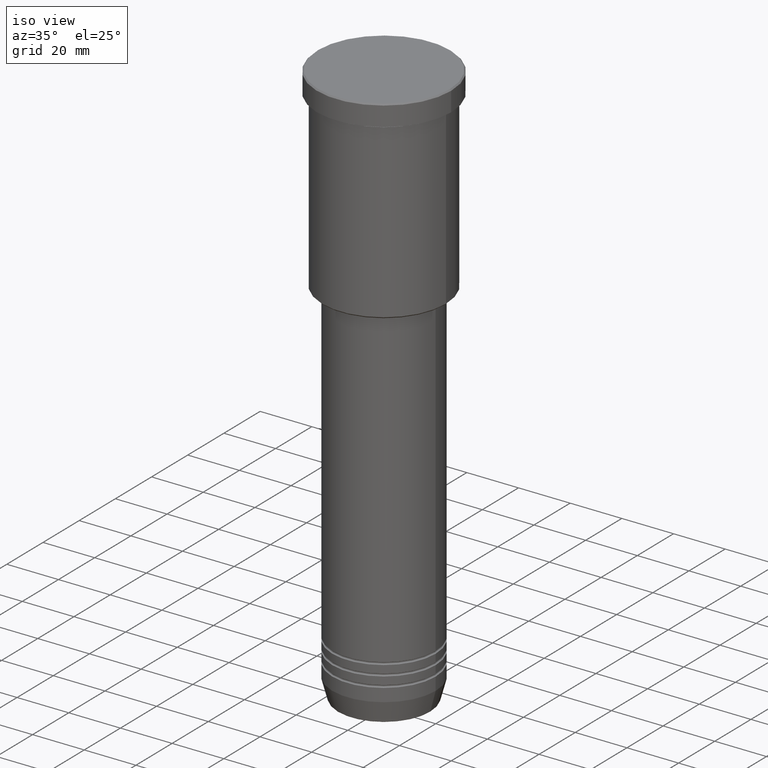
[diagram: clean part render]
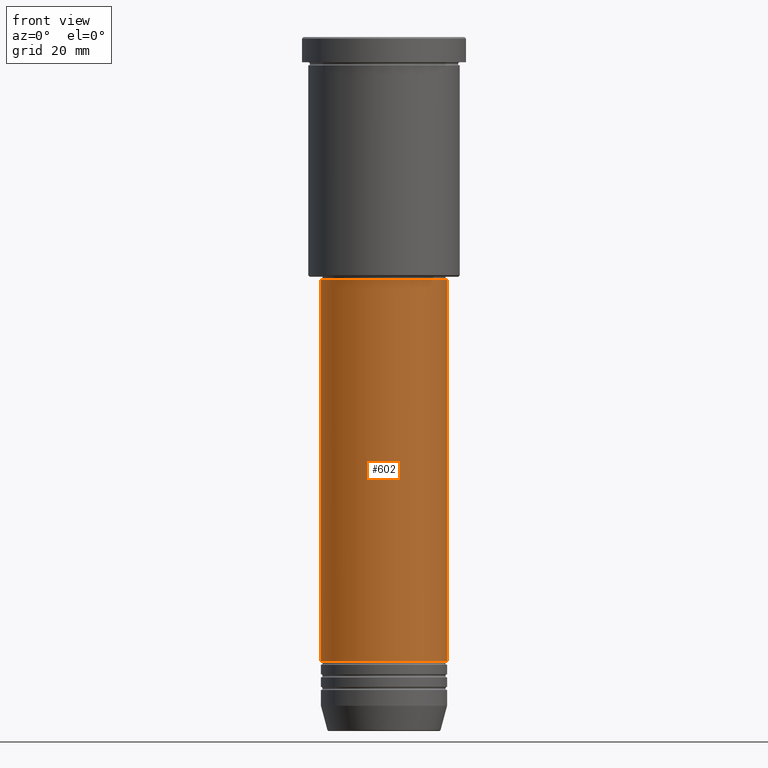
[diagram: tour spotlight — one face highlighted and labeled with its STEP entity id]
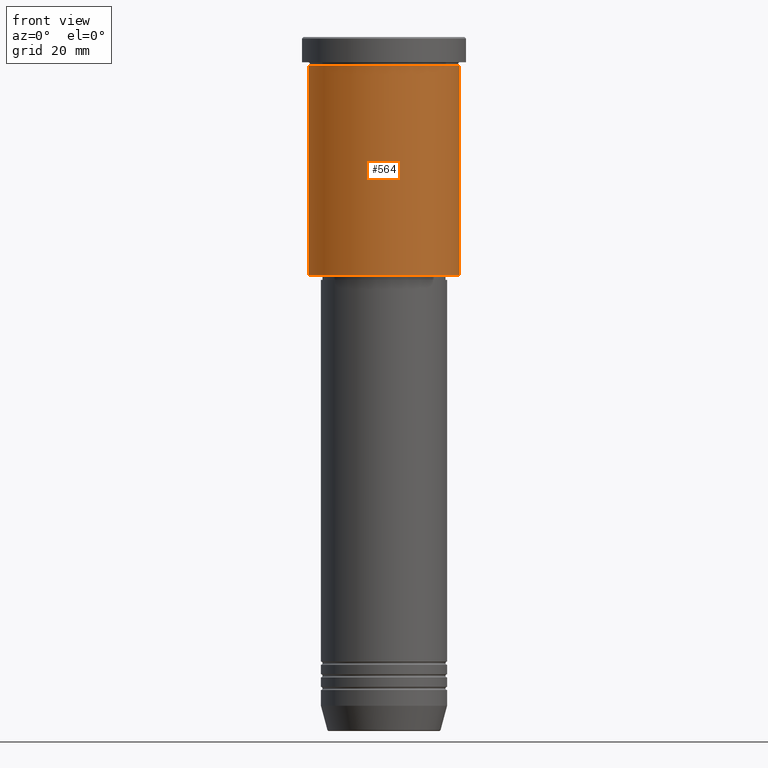
[diagram: tour spotlight — one face highlighted and labeled with its STEP entity id]
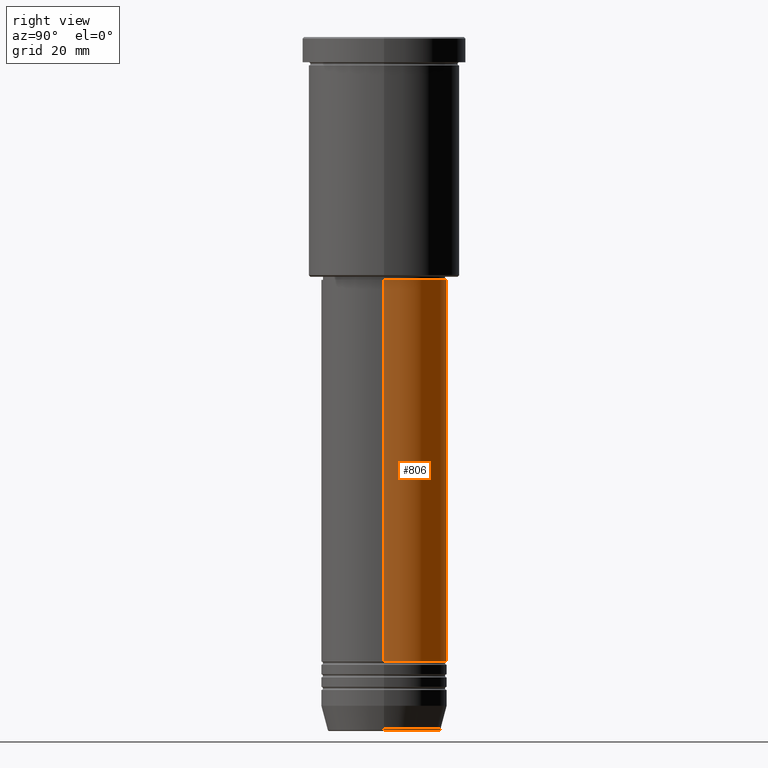
[diagram: tour spotlight — one face highlighted and labeled with its STEP entity id]
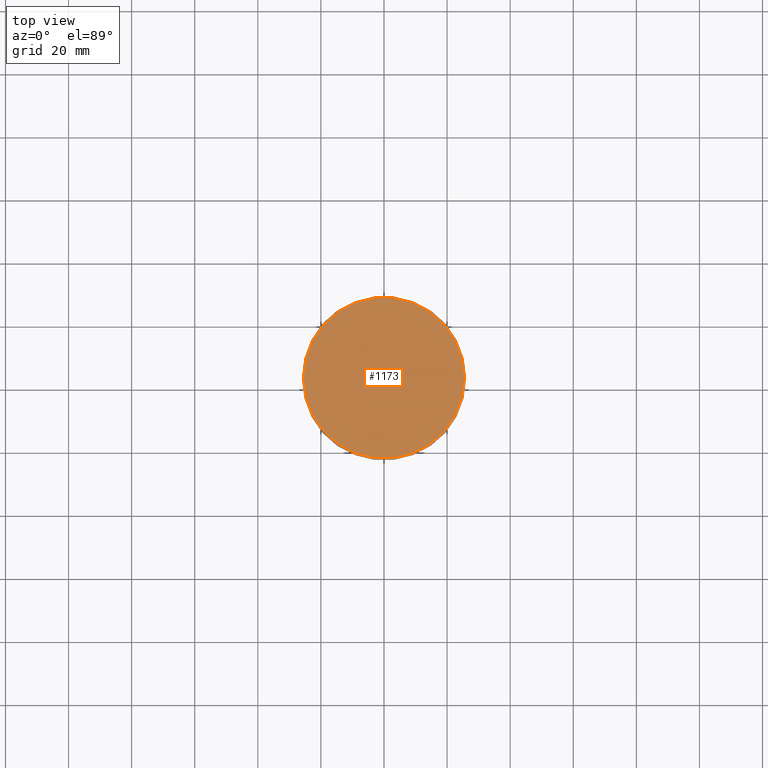
[diagram: tour spotlight — one face highlighted and labeled with its STEP entity id]
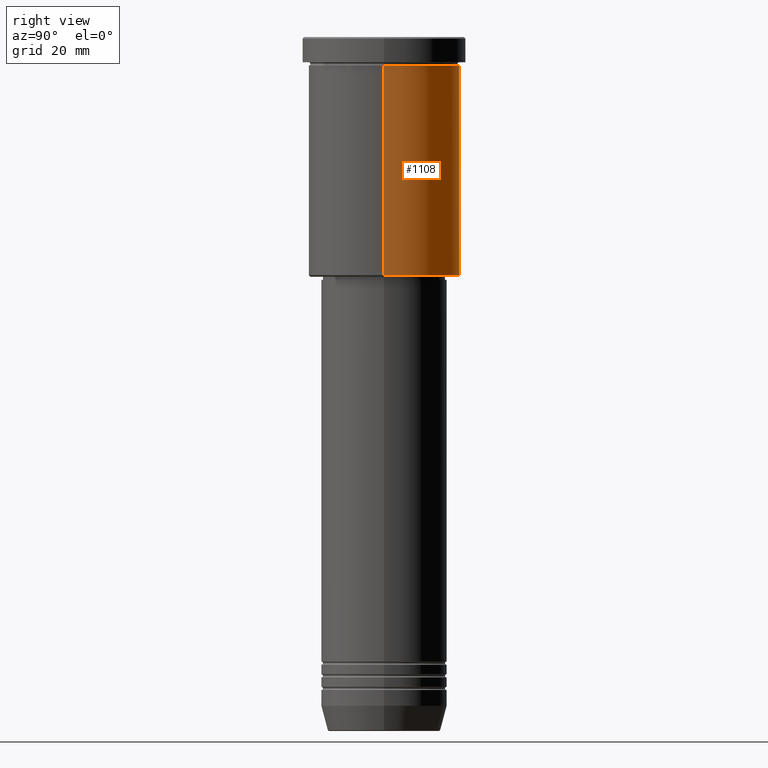
[diagram: tour spotlight — one face highlighted and labeled with its STEP entity id]
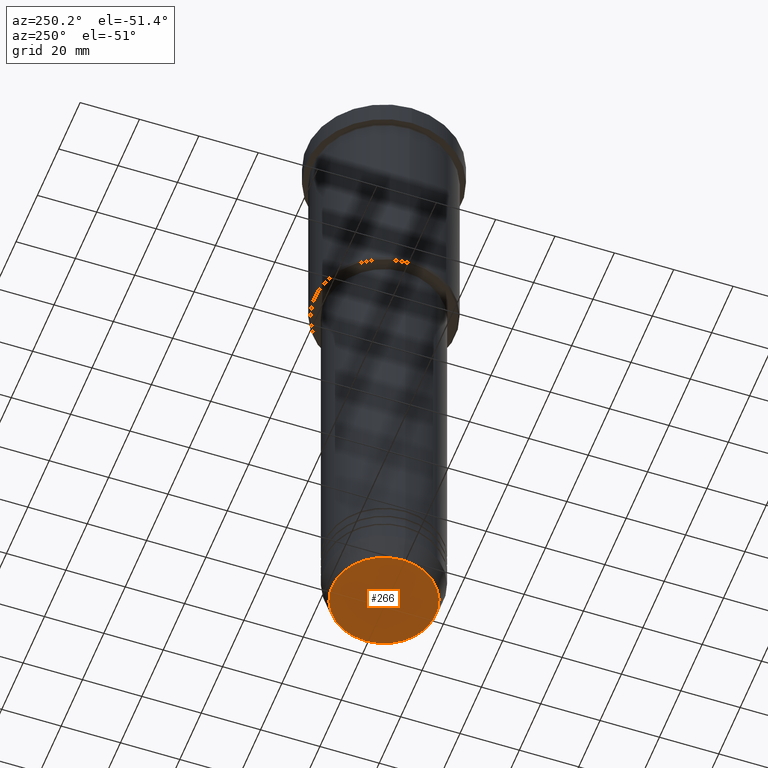
[diagram: tour spotlight — one face highlighted and labeled with its STEP entity id]
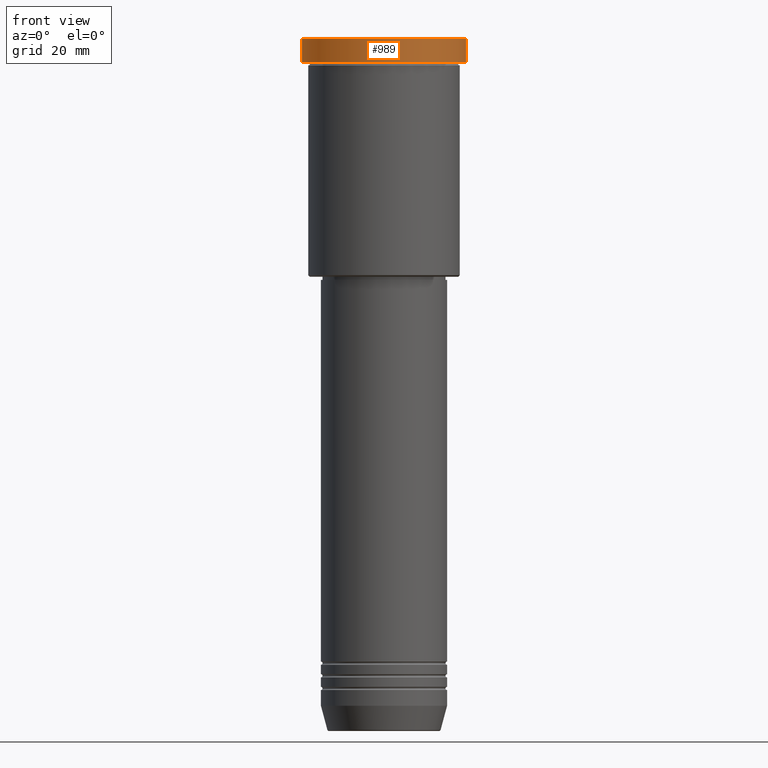
[diagram: tour spotlight — one face highlighted and labeled with its STEP entity id]
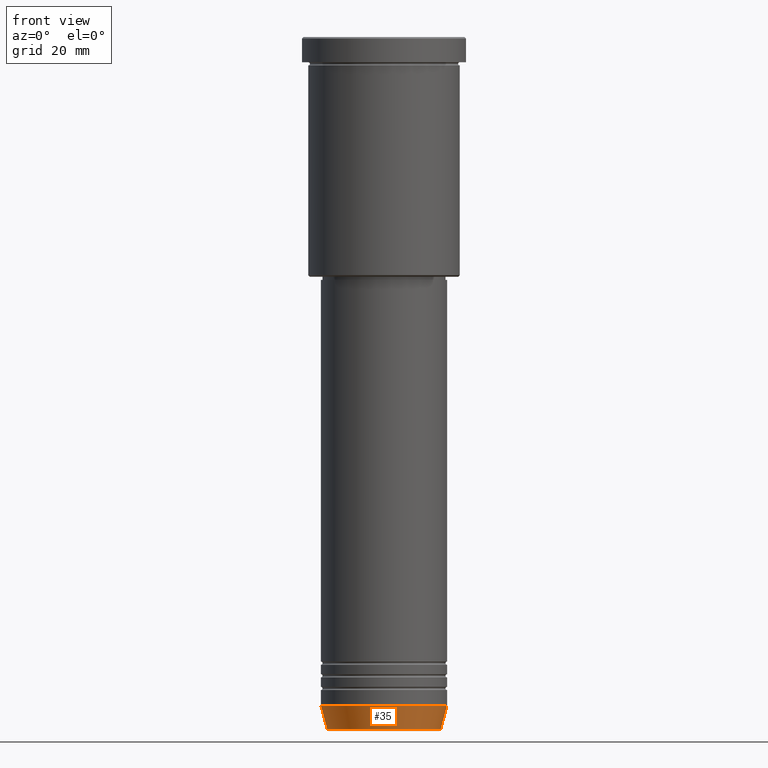
[diagram: tour spotlight — one face highlighted and labeled with its STEP entity id]
A machine part: a face-by-face anatomy tour. The part has 43 B-rep faces; the first image is the clean iso view, then the 8 largest visible faces are spotlighted one at a time (largest first), each with its STEP entity span.

Face 1 — front view, entity #602. In plain terms, the highlighted cylindrical surface (partial cylindrical patch) has radius 20 mm, axis along (-0, -0, 1).
Definition (entity closure, byte-faithful):
#1 = LINE ( 'NONE', #909, #1131 ) ;
#75 = DIRECTION ( 'NONE',  ( 1.000000000000000000, 0.000000000000000000, 0.000000000000000000 ) ) ;
#96 = AXIS2_PLACEMENT_3D ( 'NONE', #534, #903, #75 ) ;
#158 = DIRECTION ( 'NONE',  ( -0.000000000000000000, -0.000000000000000000, 1.000000000000000000 ) ) ;
#201 = CARTESIAN_POINT ( 'NONE',  ( 20.00000000000000355, 0.000000000000000000, -197.9999999999999716 ) ) ;
#252 = AXIS2_PLACEMENT_3D ( 'NONE', #421, #787, #699 ) ;
#259 = ORIENTED_EDGE ( 'NONE', *, *, #861, .F. ) ;
#263 = DIRECTION ( 'NONE',  ( 1.000000000000000000, 0.000000000000000000, 0.000000000000000000 ) ) ;
#361 = VERTEX_POINT ( 'NONE', #968 ) ;
#421 = CARTESIAN_POINT ( 'NONE',  ( 0.000000000000000000, 0.000000000000000000, -77.00000000000004263 ) ) ;
#440 = CARTESIAN_POINT ( 'NONE',  ( -20.00000000000000355, 2.449293598294706907E-15, -197.9999999999999716 ) ) ;
#445 = LINE ( 'NONE', #987, #755 ) ;
#466 = ORIENTED_EDGE ( 'NONE', *, *, #869, .T. ) ;
#525 = EDGE_LOOP ( 'NONE', ( #641, #466, #821, #259 ) ) ;
#534 = CARTESIAN_POINT ( 'NONE',  ( 0.000000000000000000, 0.000000000000000000, 0.000000000000000000 ) ) ;
#542 = FACE_OUTER_BOUND ( 'NONE', #525, .T. ) ;
#602 = ADVANCED_FACE ( 'NONE', ( #542 ), #964, .T. ) ;
#615 = CARTESIAN_POINT ( 'NONE',  ( 0.000000000000000000, 0.000000000000000000, -197.9999999999999716 ) ) ;
#627 = CIRCLE ( 'NONE', #252, 20.00000000000000355 ) ;
#641 = ORIENTED_EDGE ( 'NONE', *, *, #1146, .F. ) ;
#699 = DIRECTION ( 'NONE',  ( 1.000000000000000000, 0.000000000000000000, 0.000000000000000000 ) ) ;
#736 = DIRECTION ( 'NONE',  ( -0.000000000000000000, -0.000000000000000000, 1.000000000000000000 ) ) ;
#755 = VECTOR ( 'NONE', #976, 1000.000000000000000 ) ;
#787 = DIRECTION ( 'NONE',  ( -0.000000000000000000, -0.000000000000000000, 1.000000000000000000 ) ) ;
#820 = CARTESIAN_POINT ( 'NONE',  ( 20.00000000000000355, 0.000000000000000000, -77.00000000000004263 ) ) ;
#821 = ORIENTED_EDGE ( 'NONE', *, *, #1025, .T. ) ;
#861 = EDGE_CURVE ( 'NONE', #361, #941, #627, .T. ) ;
#869 = EDGE_CURVE ( 'NONE', #1083, #937, #877, .T. ) ;
#877 = CIRCLE ( 'NONE', #975, 20.00000000000000355 ) ;
#903 = DIRECTION ( 'NONE',  ( -0.000000000000000000, -0.000000000000000000, 1.000000000000000000 ) ) ;
#909 = CARTESIAN_POINT ( 'NONE',  ( 20.00000000000000355, 0.000000000000000000, 0.000000000000000000 ) ) ;
#937 = VERTEX_POINT ( 'NONE', #201 ) ;
#941 = VERTEX_POINT ( 'NONE', #820 ) ;
#964 = CYLINDRICAL_SURFACE ( 'NONE', #96, 20.00000000000000355 ) ;
#968 = CARTESIAN_POINT ( 'NONE',  ( -20.00000000000000355, 2.449293598294706907E-15, -77.00000000000004263 ) ) ;
#975 = AXIS2_PLACEMENT_3D ( 'NONE', #615, #158, #263 ) ;
#976 = DIRECTION ( 'NONE',  ( -0.000000000000000000, -0.000000000000000000, 1.000000000000000000 ) ) ;
#987 = CARTESIAN_POINT ( 'NONE',  ( -20.00000000000000355, 2.449293598294706907E-15, 0.000000000000000000 ) ) ;
#1025 = EDGE_CURVE ( 'NONE', #937, #941, #1, .T. ) ;
#1083 = VERTEX_POINT ( 'NONE', #440 ) ;
#1131 = VECTOR ( 'NONE', #736, 1000.000000000000000 ) ;
#1146 = EDGE_CURVE ( 'NONE', #1083, #361, #445, .T. ) ;

Face 2 — front view, entity #564. In plain terms, the highlighted cylindrical surface (partial cylindrical patch) has radius 24 mm, axis along (-0, -0, 1).
Definition (entity closure, byte-faithful):
#76 = CIRCLE ( 'NONE', #313, 24.00000000000000000 ) ;
#156 = AXIS2_PLACEMENT_3D ( 'NONE', #724, #1009, #536 ) ;
#171 = DIRECTION ( 'NONE',  ( -0.000000000000000000, -0.000000000000000000, 1.000000000000000000 ) ) ;
#209 = ORIENTED_EDGE ( 'NONE', *, *, #507, .T. ) ;
#275 = AXIS2_PLACEMENT_3D ( 'NONE', #813, #171, #679 ) ;
#294 = EDGE_CURVE ( 'NONE', #504, #650, #76, .T. ) ;
#313 = AXIS2_PLACEMENT_3D ( 'NONE', #1147, #332, #698 ) ;
#332 = DIRECTION ( 'NONE',  ( -0.000000000000000000, -0.000000000000000000, 1.000000000000000000 ) ) ;
#450 = DIRECTION ( 'NONE',  ( -0.000000000000000000, -0.000000000000000000, 1.000000000000000000 ) ) ;
#495 = CARTESIAN_POINT ( 'NONE',  ( 24.00000000000000000, 0.000000000000000000, 0.000000000000000000 ) ) ;
#501 = EDGE_CURVE ( 'NONE', #1148, #504, #996, .T. ) ;
#504 = VERTEX_POINT ( 'NONE', #815 ) ;
#507 = EDGE_CURVE ( 'NONE', #1148, #1089, #935, .T. ) ;
#513 = CARTESIAN_POINT ( 'NONE',  ( 24.00000000000000000, 0.000000000000000000, -75.49999999999997158 ) ) ;
#536 = DIRECTION ( 'NONE',  ( -1.000000000000000000, 0.000000000000000000, 0.000000000000000000 ) ) ;
#539 = EDGE_CURVE ( 'NONE', #1089, #650, #1026, .T. ) ;
#564 = ADVANCED_FACE ( 'NONE', ( #747 ), #800, .T. ) ;
#623 = ORIENTED_EDGE ( 'NONE', *, *, #294, .F. ) ;
#628 = CARTESIAN_POINT ( 'NONE',  ( -24.00000000000000000, 2.939152317953647894E-15, -75.49999999999997158 ) ) ;
#636 = CARTESIAN_POINT ( 'NONE',  ( -24.00000000000000000, 2.939152317953647894E-15, 0.000000000000000000 ) ) ;
#650 = VERTEX_POINT ( 'NONE', #745 ) ;
#679 = DIRECTION ( 'NONE',  ( 1.000000000000000000, 0.000000000000000000, 0.000000000000000000 ) ) ;
#698 = DIRECTION ( 'NONE',  ( 1.000000000000000000, 0.000000000000000000, 0.000000000000000000 ) ) ;
#711 = VECTOR ( 'NONE', #450, 1000.000000000000000 ) ;
#724 = CARTESIAN_POINT ( 'NONE',  ( 0.000000000000000000, 0.000000000000000000, -75.49999999999997158 ) ) ;
#745 = CARTESIAN_POINT ( 'NONE',  ( 24.00000000000000000, 0.000000000000000000, -8.999999999999994671 ) ) ;
#747 = FACE_OUTER_BOUND ( 'NONE', #1017, .T. ) ;
#800 = CYLINDRICAL_SURFACE ( 'NONE', #275, 24.00000000000000000 ) ;
#813 = CARTESIAN_POINT ( 'NONE',  ( 0.000000000000000000, 0.000000000000000000, 0.000000000000000000 ) ) ;
#815 = CARTESIAN_POINT ( 'NONE',  ( -24.00000000000000000, 2.939152317953647894E-15, -8.999999999999994671 ) ) ;
#860 = DIRECTION ( 'NONE',  ( -0.000000000000000000, -0.000000000000000000, 1.000000000000000000 ) ) ;
#935 = CIRCLE ( 'NONE', #156, 24.00000000000000000 ) ;
#996 = LINE ( 'NONE', #636, #711 ) ;
#1009 = DIRECTION ( 'NONE',  ( -0.000000000000000000, -0.000000000000000000, 1.000000000000000000 ) ) ;
#1017 = EDGE_LOOP ( 'NONE', ( #1103, #209, #1043, #623 ) ) ;
#1026 = LINE ( 'NONE', #495, #1145 ) ;
#1043 = ORIENTED_EDGE ( 'NONE', *, *, #539, .T. ) ;
#1089 = VERTEX_POINT ( 'NONE', #513 ) ;
#1103 = ORIENTED_EDGE ( 'NONE', *, *, #501, .F. ) ;
#1145 = VECTOR ( 'NONE', #860, 1000.000000000000000 ) ;
#1147 = CARTESIAN_POINT ( 'NONE',  ( 0.000000000000000000, 0.000000000000000000, -8.999999999999994671 ) ) ;
#1148 = VERTEX_POINT ( 'NONE', #628 ) ;

Face 3 — right view, entity #806. In plain terms, the highlighted cylindrical surface (partial cylindrical patch) has radius 20 mm, axis along (-0, -0, 1).
Definition (entity closure, byte-faithful):
#1 = LINE ( 'NONE', #909, #1131 ) ;
#37 = DIRECTION ( 'NONE',  ( -0.000000000000000000, -0.000000000000000000, 1.000000000000000000 ) ) ;
#69 = EDGE_LOOP ( 'NONE', ( #601, #348, #330, #607 ) ) ;
#85 = CIRCLE ( 'NONE', #142, 20.00000000000000355 ) ;
#115 = DIRECTION ( 'NONE',  ( 1.000000000000000000, 0.000000000000000000, 0.000000000000000000 ) ) ;
#142 = AXIS2_PLACEMENT_3D ( 'NONE', #883, #1165, #1158 ) ;
#201 = CARTESIAN_POINT ( 'NONE',  ( 20.00000000000000355, 0.000000000000000000, -197.9999999999999716 ) ) ;
#307 = DIRECTION ( 'NONE',  ( -0.000000000000000000, -0.000000000000000000, 1.000000000000000000 ) ) ;
#330 = ORIENTED_EDGE ( 'NONE', *, *, #428, .F. ) ;
#348 = ORIENTED_EDGE ( 'NONE', *, *, #1146, .T. ) ;
#361 = VERTEX_POINT ( 'NONE', #968 ) ;
#387 = CYLINDRICAL_SURFACE ( 'NONE', #994, 20.00000000000000355 ) ;
#428 = EDGE_CURVE ( 'NONE', #941, #361, #685, .T. ) ;
#440 = CARTESIAN_POINT ( 'NONE',  ( -20.00000000000000355, 2.449293598294706907E-15, -197.9999999999999716 ) ) ;
#445 = LINE ( 'NONE', #987, #755 ) ;
#592 = FACE_OUTER_BOUND ( 'NONE', #69, .T. ) ;
#601 = ORIENTED_EDGE ( 'NONE', *, *, #1120, .T. ) ;
#607 = ORIENTED_EDGE ( 'NONE', *, *, #1025, .F. ) ;
#685 = CIRCLE ( 'NONE', #849, 20.00000000000000355 ) ;
#736 = DIRECTION ( 'NONE',  ( -0.000000000000000000, -0.000000000000000000, 1.000000000000000000 ) ) ;
#754 = CARTESIAN_POINT ( 'NONE',  ( 0.000000000000000000, 0.000000000000000000, -77.00000000000004263 ) ) ;
#755 = VECTOR ( 'NONE', #976, 1000.000000000000000 ) ;
#806 = ADVANCED_FACE ( 'NONE', ( #592 ), #387, .T. ) ;
#820 = CARTESIAN_POINT ( 'NONE',  ( 20.00000000000000355, 0.000000000000000000, -77.00000000000004263 ) ) ;
#849 = AXIS2_PLACEMENT_3D ( 'NONE', #754, #307, #951 ) ;
#883 = CARTESIAN_POINT ( 'NONE',  ( 0.000000000000000000, 0.000000000000000000, -197.9999999999999716 ) ) ;
#909 = CARTESIAN_POINT ( 'NONE',  ( 20.00000000000000355, 0.000000000000000000, 0.000000000000000000 ) ) ;
#937 = VERTEX_POINT ( 'NONE', #201 ) ;
#941 = VERTEX_POINT ( 'NONE', #820 ) ;
#951 = DIRECTION ( 'NONE',  ( 1.000000000000000000, 0.000000000000000000, 0.000000000000000000 ) ) ;
#961 = CARTESIAN_POINT ( 'NONE',  ( 0.000000000000000000, 0.000000000000000000, 0.000000000000000000 ) ) ;
#968 = CARTESIAN_POINT ( 'NONE',  ( -20.00000000000000355, 2.449293598294706907E-15, -77.00000000000004263 ) ) ;
#976 = DIRECTION ( 'NONE',  ( -0.000000000000000000, -0.000000000000000000, 1.000000000000000000 ) ) ;
#987 = CARTESIAN_POINT ( 'NONE',  ( -20.00000000000000355, 2.449293598294706907E-15, 0.000000000000000000 ) ) ;
#994 = AXIS2_PLACEMENT_3D ( 'NONE', #961, #37, #115 ) ;
#1025 = EDGE_CURVE ( 'NONE', #937, #941, #1, .T. ) ;
#1083 = VERTEX_POINT ( 'NONE', #440 ) ;
#1120 = EDGE_CURVE ( 'NONE', #937, #1083, #85, .T. ) ;
#1131 = VECTOR ( 'NONE', #736, 1000.000000000000000 ) ;
#1146 = EDGE_CURVE ( 'NONE', #1083, #361, #445, .T. ) ;
#1158 = DIRECTION ( 'NONE',  ( 1.000000000000000000, 0.000000000000000000, 0.000000000000000000 ) ) ;
#1165 = DIRECTION ( 'NONE',  ( -0.000000000000000000, -0.000000000000000000, 1.000000000000000000 ) ) ;

Face 4 — top view, entity #1173. In plain terms, the highlighted planar face has unit normal (0, -0, 1).
Definition (entity closure, byte-faithful):
#72 = CARTESIAN_POINT ( 'NONE',  ( 0.000000000000000000, 0.000000000000000000, 0.000000000000000000 ) ) ;
#109 = DIRECTION ( 'NONE',  ( -0.000000000000000000, -0.000000000000000000, 1.000000000000000000 ) ) ;
#218 = EDGE_CURVE ( 'NONE', #988, #299, #667, .T. ) ;
#299 = VERTEX_POINT ( 'NONE', #692 ) ;
#317 = AXIS2_PLACEMENT_3D ( 'NONE', #622, #532, #1030 ) ;
#345 = DIRECTION ( 'NONE',  ( -0.000000000000000000, -0.000000000000000000, 1.000000000000000000 ) ) ;
#347 = FACE_OUTER_BOUND ( 'NONE', #610, .T. ) ;
#367 = EDGE_CURVE ( 'NONE', #299, #988, #436, .T. ) ;
#410 = ORIENTED_EDGE ( 'NONE', *, *, #218, .T. ) ;
#436 = CIRCLE ( 'NONE', #594, 25.49999999999997158 ) ;
#437 = DIRECTION ( 'NONE',  ( 1.000000000000000000, 0.000000000000000000, 0.000000000000000000 ) ) ;
#517 = ORIENTED_EDGE ( 'NONE', *, *, #367, .T. ) ;
#532 = DIRECTION ( 'NONE',  ( 0.000000000000000000, -0.000000000000000000, 1.000000000000000000 ) ) ;
#594 = AXIS2_PLACEMENT_3D ( 'NONE', #72, #345, #437 ) ;
#610 = EDGE_LOOP ( 'NONE', ( #410, #517 ) ) ;
#622 = CARTESIAN_POINT ( 'NONE',  ( 0.000000000000000000, 0.000000000000000000, 0.000000000000000000 ) ) ;
#667 = CIRCLE ( 'NONE', #844, 25.49999999999997158 ) ;
#692 = CARTESIAN_POINT ( 'NONE',  ( 25.49999999999997158, 3.153465507804432826E-15, 0.000000000000000000 ) ) ;
#708 = PLANE ( 'NONE',  #317 ) ;
#835 = CARTESIAN_POINT ( 'NONE',  ( -25.49999999999997158, 0.000000000000000000, 0.000000000000000000 ) ) ;
#844 = AXIS2_PLACEMENT_3D ( 'NONE', #944, #109, #946 ) ;
#944 = CARTESIAN_POINT ( 'NONE',  ( 0.000000000000000000, 0.000000000000000000, 0.000000000000000000 ) ) ;
#946 = DIRECTION ( 'NONE',  ( 1.000000000000000000, 0.000000000000000000, 0.000000000000000000 ) ) ;
#988 = VERTEX_POINT ( 'NONE', #835 ) ;
#1030 = DIRECTION ( 'NONE',  ( 1.000000000000000000, 0.000000000000000000, 0.000000000000000000 ) ) ;
#1173 = ADVANCED_FACE ( 'NONE', ( #347 ), #708, .T. ) ;

Face 5 — right view, entity #1108. In plain terms, the highlighted cylindrical surface (partial cylindrical patch) has radius 24 mm, axis along (-0, -0, 1).
Definition (entity closure, byte-faithful):
#23 = DIRECTION ( 'NONE',  ( -0.000000000000000000, -0.000000000000000000, 1.000000000000000000 ) ) ;
#140 = CIRCLE ( 'NONE', #285, 24.00000000000000000 ) ;
#264 = FACE_OUTER_BOUND ( 'NONE', #897, .T. ) ;
#285 = AXIS2_PLACEMENT_3D ( 'NONE', #571, #23, #1118 ) ;
#295 = ORIENTED_EDGE ( 'NONE', *, *, #700, .T. ) ;
#407 = CIRCLE ( 'NONE', #494, 24.00000000000000000 ) ;
#422 = CYLINDRICAL_SURFACE ( 'NONE', #512, 24.00000000000000000 ) ;
#450 = DIRECTION ( 'NONE',  ( -0.000000000000000000, -0.000000000000000000, 1.000000000000000000 ) ) ;
#494 = AXIS2_PLACEMENT_3D ( 'NONE', #1135, #947, #969 ) ;
#495 = CARTESIAN_POINT ( 'NONE',  ( 24.00000000000000000, 0.000000000000000000, 0.000000000000000000 ) ) ;
#501 = EDGE_CURVE ( 'NONE', #1148, #504, #996, .T. ) ;
#504 = VERTEX_POINT ( 'NONE', #815 ) ;
#512 = AXIS2_PLACEMENT_3D ( 'NONE', #807, #789, #913 ) ;
#513 = CARTESIAN_POINT ( 'NONE',  ( 24.00000000000000000, 0.000000000000000000, -75.49999999999997158 ) ) ;
#539 = EDGE_CURVE ( 'NONE', #1089, #650, #1026, .T. ) ;
#571 = CARTESIAN_POINT ( 'NONE',  ( 0.000000000000000000, 0.000000000000000000, -8.999999999999994671 ) ) ;
#603 = ORIENTED_EDGE ( 'NONE', *, *, #501, .T. ) ;
#628 = CARTESIAN_POINT ( 'NONE',  ( -24.00000000000000000, 2.939152317953647894E-15, -75.49999999999997158 ) ) ;
#636 = CARTESIAN_POINT ( 'NONE',  ( -24.00000000000000000, 2.939152317953647894E-15, 0.000000000000000000 ) ) ;
#650 = VERTEX_POINT ( 'NONE', #745 ) ;
#700 = EDGE_CURVE ( 'NONE', #1089, #1148, #407, .T. ) ;
#711 = VECTOR ( 'NONE', #450, 1000.000000000000000 ) ;
#745 = CARTESIAN_POINT ( 'NONE',  ( 24.00000000000000000, 0.000000000000000000, -8.999999999999994671 ) ) ;
#789 = DIRECTION ( 'NONE',  ( -0.000000000000000000, -0.000000000000000000, 1.000000000000000000 ) ) ;
#807 = CARTESIAN_POINT ( 'NONE',  ( 0.000000000000000000, 0.000000000000000000, 0.000000000000000000 ) ) ;
#815 = CARTESIAN_POINT ( 'NONE',  ( -24.00000000000000000, 2.939152317953647894E-15, -8.999999999999994671 ) ) ;
#860 = DIRECTION ( 'NONE',  ( -0.000000000000000000, -0.000000000000000000, 1.000000000000000000 ) ) ;
#897 = EDGE_LOOP ( 'NONE', ( #295, #603, #1065, #1079 ) ) ;
#913 = DIRECTION ( 'NONE',  ( 1.000000000000000000, 0.000000000000000000, 0.000000000000000000 ) ) ;
#947 = DIRECTION ( 'NONE',  ( -0.000000000000000000, -0.000000000000000000, 1.000000000000000000 ) ) ;
#969 = DIRECTION ( 'NONE',  ( -1.000000000000000000, 0.000000000000000000, 0.000000000000000000 ) ) ;
#996 = LINE ( 'NONE', #636, #711 ) ;
#1026 = LINE ( 'NONE', #495, #1145 ) ;
#1065 = ORIENTED_EDGE ( 'NONE', *, *, #1179, .F. ) ;
#1079 = ORIENTED_EDGE ( 'NONE', *, *, #539, .F. ) ;
#1089 = VERTEX_POINT ( 'NONE', #513 ) ;
#1108 = ADVANCED_FACE ( 'NONE', ( #264 ), #422, .T. ) ;
#1118 = DIRECTION ( 'NONE',  ( 1.000000000000000000, 0.000000000000000000, 0.000000000000000000 ) ) ;
#1135 = CARTESIAN_POINT ( 'NONE',  ( 0.000000000000000000, 0.000000000000000000, -75.49999999999997158 ) ) ;
#1145 = VECTOR ( 'NONE', #860, 1000.000000000000000 ) ;
#1148 = VERTEX_POINT ( 'NONE', #628 ) ;
#1179 = EDGE_CURVE ( 'NONE', #650, #504, #140, .T. ) ;

Face 6 — auxiliary view, entity #266. In plain terms, the highlighted planar face has unit normal (0, -0, 1).
Definition (entity closure, byte-faithful):
#22 = DIRECTION ( 'NONE',  ( 0.000000000000000000, 0.000000000000000000, -1.000000000000000000 ) ) ;
#50 = CARTESIAN_POINT ( 'NONE',  ( 0.000000000000000000, 0.000000000000000000, -219.9999999999999716 ) ) ;
#86 = CIRCLE ( 'NONE', #339, 17.47274296656154036 ) ;
#143 = FACE_OUTER_BOUND ( 'NONE', #395, .T. ) ;
#178 = DIRECTION ( 'NONE',  ( 0.000000000000000000, 0.000000000000000000, -1.000000000000000000 ) ) ;
#226 = CIRCLE ( 'NONE', #1113, 17.47274296656154036 ) ;
#246 = CARTESIAN_POINT ( 'NONE',  ( 17.47274296656154036, 0.000000000000000000, -219.9999999999999716 ) ) ;
#266 = ADVANCED_FACE ( 'NONE', ( #143 ), #881, .F. ) ;
#281 = ORIENTED_EDGE ( 'NONE', *, *, #823, .T. ) ;
#289 = VERTEX_POINT ( 'NONE', #246 ) ;
#339 = AXIS2_PLACEMENT_3D ( 'NONE', #852, #22, #392 ) ;
#392 = DIRECTION ( 'NONE',  ( 1.000000000000000000, 0.000000000000000000, 0.000000000000000000 ) ) ;
#395 = EDGE_LOOP ( 'NONE', ( #281, #435 ) ) ;
#405 = DIRECTION ( 'NONE',  ( 1.000000000000000000, 0.000000000000000000, 0.000000000000000000 ) ) ;
#435 = ORIENTED_EDGE ( 'NONE', *, *, #596, .T. ) ;
#499 = CARTESIAN_POINT ( 'NONE',  ( 0.000000000000000000, 0.000000000000000000, -219.9999999999999716 ) ) ;
#508 = DIRECTION ( 'NONE',  ( 1.000000000000000000, 0.000000000000000000, 0.000000000000000000 ) ) ;
#561 = AXIS2_PLACEMENT_3D ( 'NONE', #50, #1078, #508 ) ;
#596 = EDGE_CURVE ( 'NONE', #1169, #289, #226, .T. ) ;
#693 = CARTESIAN_POINT ( 'NONE',  ( -17.47274296656154036, 2.169366823916868503E-15, -219.9999999999999716 ) ) ;
#823 = EDGE_CURVE ( 'NONE', #289, #1169, #86, .T. ) ;
#852 = CARTESIAN_POINT ( 'NONE',  ( 0.000000000000000000, 0.000000000000000000, -219.9999999999999716 ) ) ;
#881 = PLANE ( 'NONE',  #561 ) ;
#1078 = DIRECTION ( 'NONE',  ( 0.000000000000000000, -0.000000000000000000, 1.000000000000000000 ) ) ;
#1113 = AXIS2_PLACEMENT_3D ( 'NONE', #499, #178, #405 ) ;
#1169 = VERTEX_POINT ( 'NONE', #693 ) ;

Face 7 — front view, entity #989. In plain terms, the highlighted cylindrical surface (partial cylindrical patch) has radius 26 mm, axis along (-0, -0, 1).
Definition (entity closure, byte-faithful):
#4 = VERTEX_POINT ( 'NONE', #1182 ) ;
#20 = DIRECTION ( 'NONE',  ( -0.000000000000000000, -0.000000000000000000, 1.000000000000000000 ) ) ;
#21 = CARTESIAN_POINT ( 'NONE',  ( 26.00000000000000000, 0.000000000000000000, 0.000000000000000000 ) ) ;
#94 = CARTESIAN_POINT ( 'NONE',  ( -26.00000000000000000, 3.184081677783118191E-15, -7.999999999999992895 ) ) ;
#98 = CARTESIAN_POINT ( 'NONE',  ( 26.00000000000000000, 0.000000000000000000, -0.5000000000000247580 ) ) ;
#107 = CARTESIAN_POINT ( 'NONE',  ( 0.000000000000000000, 0.000000000000000000, -7.999999999999992895 ) ) ;
#128 = CARTESIAN_POINT ( 'NONE',  ( -26.00000000000000000, 3.184081677783118191E-15, -0.5000000000000247580 ) ) ;
#162 = AXIS2_PLACEMENT_3D ( 'NONE', #280, #1086, #173 ) ;
#170 = VERTEX_POINT ( 'NONE', #128 ) ;
#173 = DIRECTION ( 'NONE',  ( 1.000000000000000000, 0.000000000000000000, 0.000000000000000000 ) ) ;
#183 = CIRCLE ( 'NONE', #829, 26.00000000000000000 ) ;
#211 = EDGE_CURVE ( 'NONE', #4, #637, #1031, .T. ) ;
#279 = ORIENTED_EDGE ( 'NONE', *, *, #954, .T. ) ;
#280 = CARTESIAN_POINT ( 'NONE',  ( 0.000000000000000000, 0.000000000000000000, 0.000000000000000000 ) ) ;
#358 = ORIENTED_EDGE ( 'NONE', *, *, #655, .F. ) ;
#364 = CYLINDRICAL_SURFACE ( 'NONE', #162, 26.00000000000000000 ) ;
#390 = DIRECTION ( 'NONE',  ( 1.000000000000000000, 0.000000000000000000, 0.000000000000000000 ) ) ;
#412 = EDGE_CURVE ( 'NONE', #637, #170, #183, .T. ) ;
#459 = FACE_OUTER_BOUND ( 'NONE', #1094, .T. ) ;
#497 = DIRECTION ( 'NONE',  ( -0.000000000000000000, -0.000000000000000000, 1.000000000000000000 ) ) ;
#575 = VECTOR ( 'NONE', #933, 1000.000000000000000 ) ;
#576 = CARTESIAN_POINT ( 'NONE',  ( 0.000000000000000000, 0.000000000000000000, -0.5000000000000247580 ) ) ;
#637 = VERTEX_POINT ( 'NONE', #98 ) ;
#655 = EDGE_CURVE ( 'NONE', #1019, #170, #1183, .T. ) ;
#727 = CARTESIAN_POINT ( 'NONE',  ( -26.00000000000000000, 3.184081677783118191E-15, 0.000000000000000000 ) ) ;
#735 = AXIS2_PLACEMENT_3D ( 'NONE', #107, #20, #390 ) ;
#749 = DIRECTION ( 'NONE',  ( 0.000000000000000000, 0.000000000000000000, -1.000000000000000000 ) ) ;
#777 = VECTOR ( 'NONE', #497, 1000.000000000000000 ) ;
#788 = CIRCLE ( 'NONE', #735, 26.00000000000000000 ) ;
#829 = AXIS2_PLACEMENT_3D ( 'NONE', #576, #749, #1044 ) ;
#933 = DIRECTION ( 'NONE',  ( -0.000000000000000000, -0.000000000000000000, 1.000000000000000000 ) ) ;
#950 = ORIENTED_EDGE ( 'NONE', *, *, #412, .T. ) ;
#954 = EDGE_CURVE ( 'NONE', #1019, #4, #788, .T. ) ;
#981 = ORIENTED_EDGE ( 'NONE', *, *, #211, .T. ) ;
#989 = ADVANCED_FACE ( 'NONE', ( #459 ), #364, .T. ) ;
#1019 = VERTEX_POINT ( 'NONE', #94 ) ;
#1031 = LINE ( 'NONE', #21, #777 ) ;
#1044 = DIRECTION ( 'NONE',  ( 1.000000000000000000, 0.000000000000000000, 0.000000000000000000 ) ) ;
#1086 = DIRECTION ( 'NONE',  ( -0.000000000000000000, -0.000000000000000000, 1.000000000000000000 ) ) ;
#1094 = EDGE_LOOP ( 'NONE', ( #358, #279, #981, #950 ) ) ;
#1182 = CARTESIAN_POINT ( 'NONE',  ( 26.00000000000000000, 0.000000000000000000, -7.999999999999992895 ) ) ;
#1183 = LINE ( 'NONE', #727, #575 ) ;

Face 8 — front view, entity #35. In plain terms, the highlighted conical surface has half-angle 15 deg.
Definition (entity closure, byte-faithful):
#35 = ADVANCED_FACE ( 'NONE', ( #470 ), #465, .T. ) ;
#56 = CIRCLE ( 'NONE', #810, 20.00000000000000355 ) ;
#74 = EDGE_LOOP ( 'NONE', ( #977, #660, #322, #284 ) ) ;
#84 = DIRECTION ( 'NONE',  ( 1.000000000000000000, 0.000000000000000000, 0.000000000000000000 ) ) ;
#123 = EDGE_CURVE ( 'NONE', #783, #1155, #845, .T. ) ;
#137 = CARTESIAN_POINT ( 'NONE',  ( 0.000000000000000000, 0.000000000000000000, -219.6294095225512422 ) ) ;
#198 = DIRECTION ( 'NONE',  ( -0.000000000000000000, -0.000000000000000000, 1.000000000000000000 ) ) ;
#284 = ORIENTED_EDGE ( 'NONE', *, *, #526, .F. ) ;
#306 = VERTEX_POINT ( 'NONE', #1068 ) ;
#322 = ORIENTED_EDGE ( 'NONE', *, *, #123, .T. ) ;
#357 = DIRECTION ( 'NONE',  ( -0.000000000000000000, -0.000000000000000000, 1.000000000000000000 ) ) ;
#388 = EDGE_CURVE ( 'NONE', #1082, #306, #580, .T. ) ;
#434 = CARTESIAN_POINT ( 'NONE',  ( 0.000000000000000000, 0.000000000000000000, -212.0000000000000000 ) ) ;
#465 = CONICAL_SURFACE ( 'NONE', #784, 20.00000000000000355, 0.2617993877991500740 ) ;
#470 = FACE_OUTER_BOUND ( 'NONE', #74, .T. ) ;
#500 = DIRECTION ( 'NONE',  ( -0.2588190451025213501, 3.169619151431772337E-17, 0.9659258262890680902 ) ) ;
#505 = DIRECTION ( 'NONE',  ( 1.000000000000000000, 0.000000000000000000, 0.000000000000000000 ) ) ;
#526 = EDGE_CURVE ( 'NONE', #306, #1155, #56, .T. ) ;
#538 = VECTOR ( 'NONE', #1123, 1000.000000000000000 ) ;
#540 = CARTESIAN_POINT ( 'NONE',  ( 20.00000000000000355, 0.000000000000000000, -212.0000000000000000 ) ) ;
#580 = LINE ( 'NONE', #855, #949 ) ;
#583 = CARTESIAN_POINT ( 'NONE',  ( 17.95570587970607690, 0.000000000000000000, -219.6294095225512422 ) ) ;
#609 = EDGE_CURVE ( 'NONE', #1082, #783, #985, .T. ) ;
#657 = AXIS2_PLACEMENT_3D ( 'NONE', #137, #915, #505 ) ;
#660 = ORIENTED_EDGE ( 'NONE', *, *, #609, .T. ) ;
#767 = CARTESIAN_POINT ( 'NONE',  ( 20.00000000000000355, 0.000000000000000000, -212.0000000000000000 ) ) ;
#783 = VERTEX_POINT ( 'NONE', #583 ) ;
#784 = AXIS2_PLACEMENT_3D ( 'NONE', #932, #357, #84 ) ;
#803 = DIRECTION ( 'NONE',  ( 1.000000000000000000, 0.000000000000000000, 0.000000000000000000 ) ) ;
#810 = AXIS2_PLACEMENT_3D ( 'NONE', #434, #198, #803 ) ;
#845 = LINE ( 'NONE', #767, #538 ) ;
#855 = CARTESIAN_POINT ( 'NONE',  ( -20.00000000000000355, 2.449293598294706907E-15, -212.0000000000000000 ) ) ;
#878 = CARTESIAN_POINT ( 'NONE',  ( -17.95570587970607690, 2.324116685748021371E-15, -219.6294095225512422 ) ) ;
#915 = DIRECTION ( 'NONE',  ( -0.000000000000000000, -0.000000000000000000, 1.000000000000000000 ) ) ;
#932 = CARTESIAN_POINT ( 'NONE',  ( 0.000000000000000000, 0.000000000000000000, -212.0000000000000000 ) ) ;
#949 = VECTOR ( 'NONE', #500, 1000.000000000000000 ) ;
#977 = ORIENTED_EDGE ( 'NONE', *, *, #388, .F. ) ;
#985 = CIRCLE ( 'NONE', #657, 17.95570587970607690 ) ;
#1068 = CARTESIAN_POINT ( 'NONE',  ( -20.00000000000000355, 2.449293598294706907E-15, -212.0000000000000000 ) ) ;
#1082 = VERTEX_POINT ( 'NONE', #878 ) ;
#1123 = DIRECTION ( 'NONE',  ( 0.2588190451025213501, 0.000000000000000000, 0.9659258262890680902 ) ) ;
#1155 = VERTEX_POINT ( 'NONE', #540 ) ;